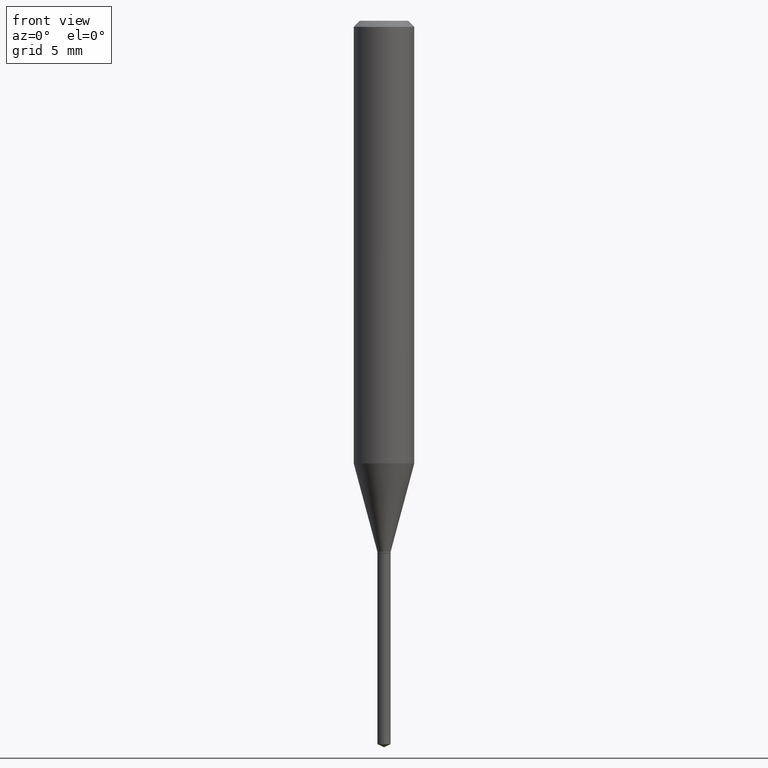
[diagram: clean part render]
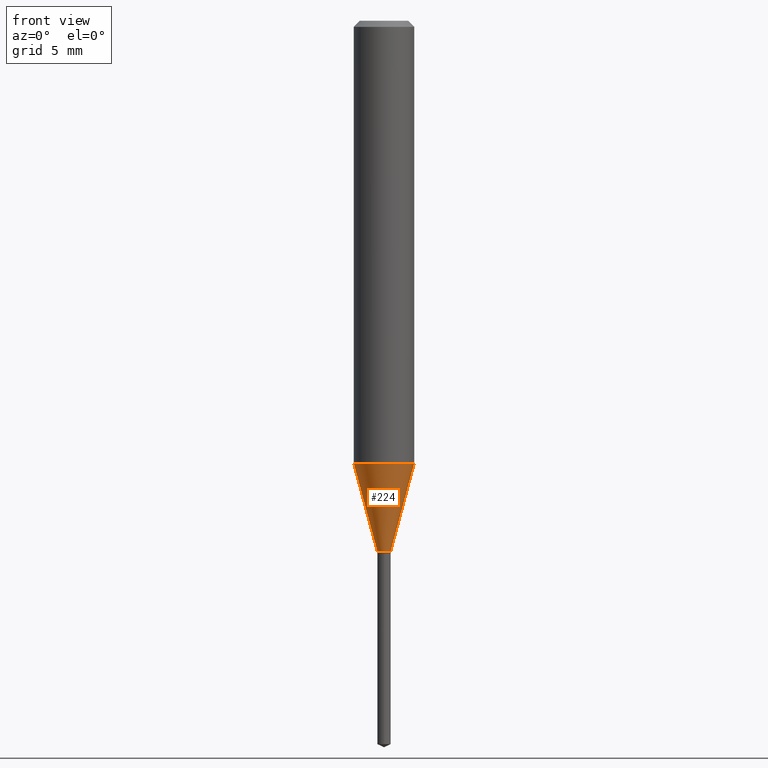
[diagram: same view with one face highlighted and labeled with its STEP entity id]
A machine part, front view. The second image highlights one B-rep face of the part: STEP entity #224.
In plain terms, the highlighted conical surface has half-angle 15 deg.
Its self-contained STEP definition (entity closure, byte-faithful):
#8 = LINE ( 'NONE', #388, #26 ) ;
#26 = VECTOR ( 'NONE', #474, 39.37007874015748854 ) ;
#32 = DIRECTION ( 'NONE',  ( 0.2588190451025211836, 1.565188264969622559E-15, 0.9659258262890679791 ) ) ;
#38 = DIRECTION ( 'NONE',  ( -2.445468806185136597E-29, 3.491481338843145583E-15, 1.000000000000000000 ) ) ;
#42 = ORIENTED_EDGE ( 'NONE', *, *, #485, .T. ) ;
#45 = FACE_OUTER_BOUND ( 'NONE', #63, .T. ) ;
#58 = EDGE_CURVE ( 'NONE', #387, #149, #401, .T. ) ;
#63 = EDGE_LOOP ( 'NONE', ( #392, #42, #258, #335 ) ) ;
#81 = AXIS2_PLACEMENT_3D ( 'NONE', #435, #170, #95 ) ;
#95 = DIRECTION ( 'NONE',  ( 1.000000000000000000, -6.982962677686269866E-15, 0.000000000000000000 ) ) ;
#97 = AXIS2_PLACEMENT_3D ( 'NONE', #326, #38, #310 ) ;
#103 = DIRECTION ( 'NONE',  ( 1.000000000000000000, -6.982962677686264344E-15, 0.000000000000000000 ) ) ;
#140 = VERTEX_POINT ( 'NONE', #490 ) ;
#149 = VERTEX_POINT ( 'NONE', #346 ) ;
#170 = DIRECTION ( 'NONE',  ( -2.445468806185136597E-29, 3.491481338843145583E-15, 1.000000000000000000 ) ) ;
#184 = CARTESIAN_POINT ( 'NONE',  ( 0.01379999999999999977, -3.922679284190274713E-15, -1.095900000000000096 ) ) ;
#194 = VECTOR ( 'NONE', #32, 39.37007874015748854 ) ;
#215 = CARTESIAN_POINT ( 'NONE',  ( -0.01379999999999999977, -3.734544168113227903E-15, -1.095900000000000096 ) ) ;
#224 = ADVANCED_FACE ( 'NONE', ( #45 ), #391, .T. ) ;
#226 = CIRCLE ( 'NONE', #97, 0.01379999999999999977 ) ;
#258 = ORIENTED_EDGE ( 'NONE', *, *, #362, .T. ) ;
#279 = EDGE_CURVE ( 'NONE', #410, #387, #8, .T. ) ;
#310 = DIRECTION ( 'NONE',  ( 1.000000000000000000, -6.982962677686269866E-15, 0.000000000000000000 ) ) ;
#326 = CARTESIAN_POINT ( 'NONE',  ( 2.679989264698291414E-29, -3.826314399238203772E-15, -1.095900000000000096 ) ) ;
#333 = CARTESIAN_POINT ( 'NONE',  ( -0.06250000000000012490, -2.747645403351391964E-15, -0.9141491256713957236 ) ) ;
#335 = ORIENTED_EDGE ( 'NONE', *, *, #58, .F. ) ;
#338 = AXIS2_PLACEMENT_3D ( 'NONE', #413, #451, #103 ) ;
#346 = CARTESIAN_POINT ( 'NONE',  ( 0.06250000000000012490, -3.628169780556848222E-15, -0.9141491256713957236 ) ) ;
#362 = EDGE_CURVE ( 'NONE', #140, #149, #442, .T. ) ;
#387 = VERTEX_POINT ( 'NONE', #333 ) ;
#388 = CARTESIAN_POINT ( 'NONE',  ( -0.01379999999999999977, -3.728259501703309702E-15, -1.095900000000000096 ) ) ;
#391 = CONICAL_SURFACE ( 'NONE', #81, 0.01379999999999999977, 0.2617993877991499074 ) ;
#392 = ORIENTED_EDGE ( 'NONE', *, *, #279, .F. ) ;
#401 = CIRCLE ( 'NONE', #338, 0.06250000000000012490 ) ;
#410 = VERTEX_POINT ( 'NONE', #215 ) ;
#413 = CARTESIAN_POINT ( 'NONE',  ( 2.235523171030814691E-29, -3.191734613201455764E-15, -0.9141491256713957236 ) ) ;
#435 = CARTESIAN_POINT ( 'NONE',  ( 2.679989264698291414E-29, -3.826314399238203772E-15, -1.095900000000000096 ) ) ;
#442 = LINE ( 'NONE', #184, #194 ) ;
#451 = DIRECTION ( 'NONE',  ( -2.445468806185136597E-29, 3.491481338843145583E-15, 1.000000000000000000 ) ) ;
#474 = DIRECTION ( 'NONE',  ( -0.2588190451025211836, 5.211531920934547886E-15, 0.9659258262890679791 ) ) ;
#485 = EDGE_CURVE ( 'NONE', #410, #140, #226, .T. ) ;
#490 = CARTESIAN_POINT ( 'NONE',  ( 0.01379999999999999977, -3.922679284190274713E-15, -1.095900000000000096 ) ) ;